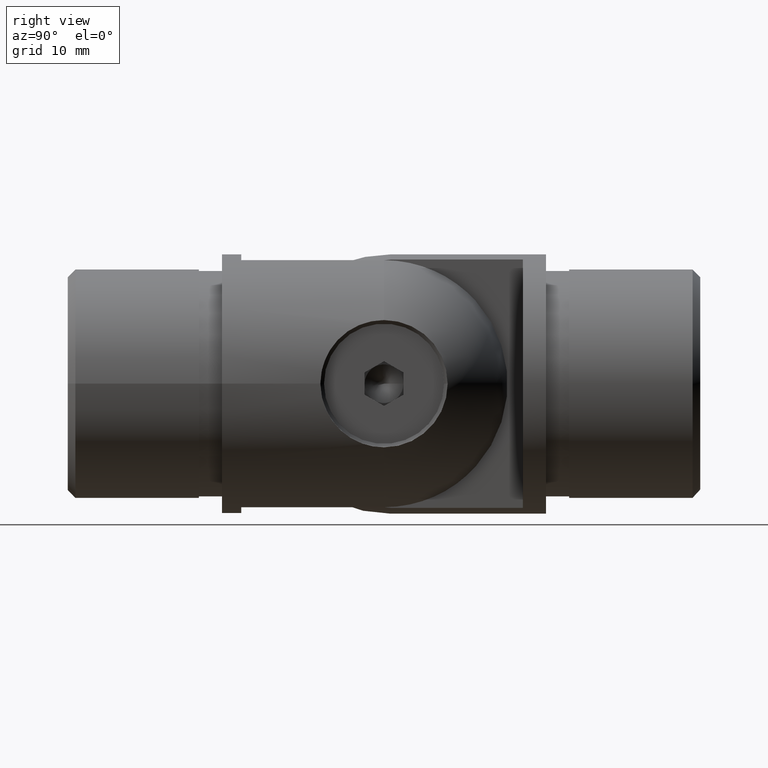
[diagram: clean part render]
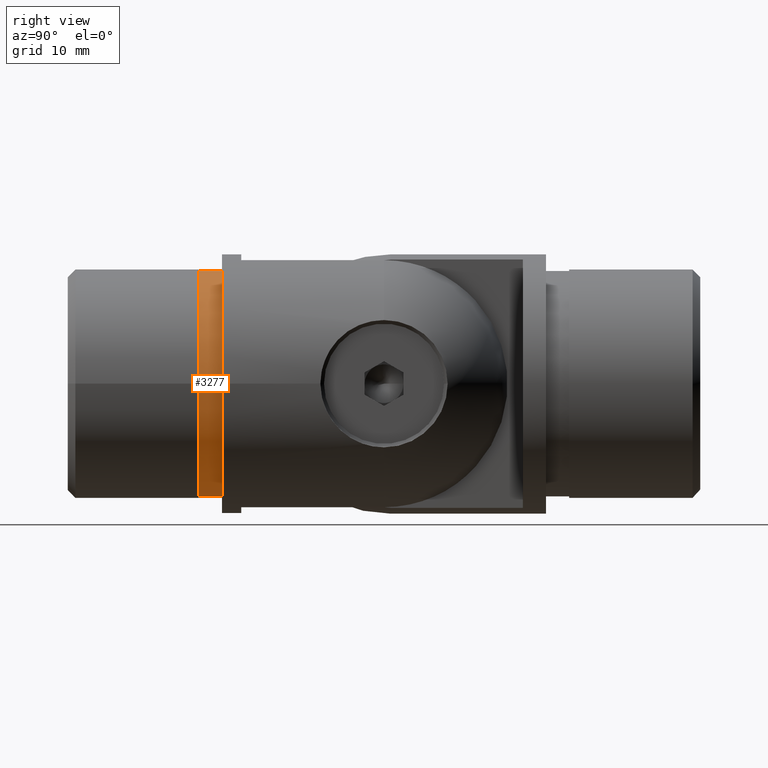
[diagram: same view with one face highlighted and labeled with its STEP entity id]
A machine part, right view. The second image highlights one B-rep face of the part: STEP entity #3277.
In plain terms, the highlighted cylindrical surface (bore or boss wall) has radius 14.6 mm, axis along (-0, 1, 0).
Its self-contained STEP definition (entity closure, byte-faithful):
#233 = CARTESIAN_POINT ( 'NONE',  ( 2.038381726453983900E-016, -3.000000000000000000, 0.0000000000000000000 ) ) ;
#423 = AXIS2_PLACEMENT_3D ( 'NONE', #3632, #10836, #8396 ) ;
#431 = DIRECTION ( 'NONE',  ( 6.794605754846613000E-017, -1.000000000000000000, 0.0000000000000000000 ) ) ;
#1817 = CYLINDRICAL_SURFACE ( 'NONE', #11170, 14.59999999999999800 ) ;
#2707 = EDGE_LOOP ( 'NONE', ( #12690 ) ) ;
#2867 = VERTEX_POINT ( 'NONE', #13435 ) ;
#2951 = FACE_OUTER_BOUND ( 'NONE', #2707, .T. ) ;
#3277 = ADVANCED_FACE ( 'NONE', ( #13527, #2951 ), #1817, .T. ) ;
#3632 = CARTESIAN_POINT ( 'NONE',  ( 0.0000000000000000000, 0.0000000000000000000, 0.0000000000000000000 ) ) ;
#6044 = ORIENTED_EDGE ( 'NONE', *, *, #11481, .F. ) ;
#6728 = EDGE_CURVE ( 'NONE', #2867, #2867, #14988, .T. ) ;
#7318 = VERTEX_POINT ( 'NONE', #8832 ) ;
#7487 = DIRECTION ( 'NONE',  ( 1.000000000000000000, 5.940833821838381700E-017, 0.0000000000000000000 ) ) ;
#7972 = EDGE_LOOP ( 'NONE', ( #6044 ) ) ;
#8396 = DIRECTION ( 'NONE',  ( 1.000000000000000000, 6.794605754846613000E-017, 0.0000000000000000000 ) ) ;
#8832 = CARTESIAN_POINT ( 'NONE',  ( 14.59999999999999800, -2.999999999999999100, 0.0000000000000000000 ) ) ;
#8877 = DIRECTION ( 'NONE',  ( -6.794605754846613000E-017, 1.000000000000000000, -0.0000000000000000000 ) ) ;
#10146 = CIRCLE ( 'NONE', #13585, 14.59999999999999800 ) ;
#10836 = DIRECTION ( 'NONE',  ( 6.794605754846613000E-017, -1.000000000000000000, 0.0000000000000000000 ) ) ;
#11170 = AXIS2_PLACEMENT_3D ( 'NONE', #11230, #8877, #15056 ) ;
#11230 = CARTESIAN_POINT ( 'NONE',  ( 2.038381726453983900E-016, -3.000000000000000000, 0.0000000000000000000 ) ) ;
#11481 = EDGE_CURVE ( 'NONE', #7318, #7318, #10146, .T. ) ;
#12690 = ORIENTED_EDGE ( 'NONE', *, *, #6728, .T. ) ;
#13435 = CARTESIAN_POINT ( 'NONE',  ( 14.59999999999999800, 9.920124402076053900E-016, 0.0000000000000000000 ) ) ;
#13527 = FACE_OUTER_BOUND ( 'NONE', #7972, .T. ) ;
#13585 = AXIS2_PLACEMENT_3D ( 'NONE', #233, #431, #7487 ) ;
#14988 = CIRCLE ( 'NONE', #423, 14.59999999999999800 ) ;
#15056 = DIRECTION ( 'NONE',  ( -1.000000000000000000, -5.940833821838381700E-017, 0.0000000000000000000 ) ) ;